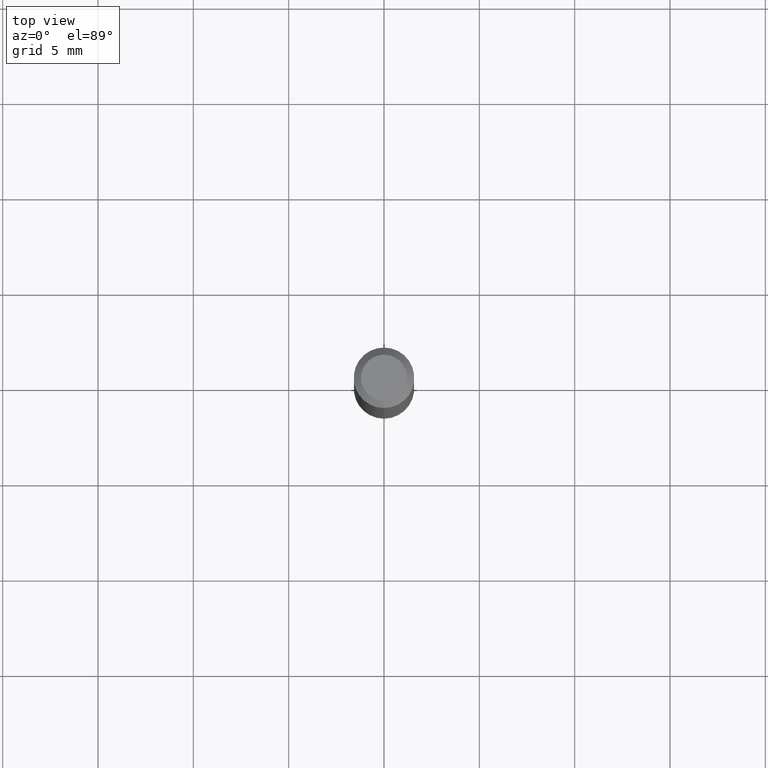
[diagram: clean part render]
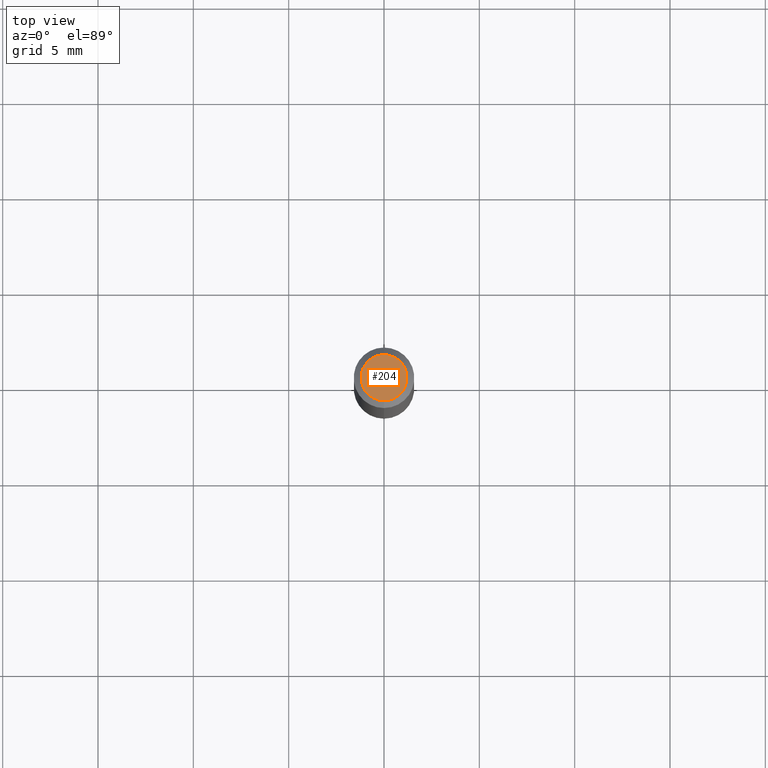
[diagram: same view with one face highlighted and labeled with its STEP entity id]
A machine part, top view. The second image highlights one B-rep face of the part: STEP entity #204.
In plain terms, the highlighted planar face has unit normal (0, -0, -1).
Its self-contained STEP definition (entity closure, byte-faithful):
#6 = DIRECTION ( 'NONE',  ( -6.982962677686266711E-15, -1.000000000000000000, 3.491488316391355955E-15 ) ) ;
#18 = AXIS2_PLACEMENT_3D ( 'NONE', #425, #57, #349 ) ;
#22 = DIRECTION ( 'NONE',  ( -2.445463933789263379E-29, 3.491488316391355561E-15, 1.000000000000000000 ) ) ;
#44 = CARTESIAN_POINT ( 'NONE',  ( -3.773273898774340269E-16, -0.04749999999999999362, -1.623009212500302985E-16 ) ) ;
#48 = VERTEX_POINT ( 'NONE', #44 ) ;
#57 = DIRECTION ( 'NONE',  ( 2.445463933789262819E-29, -3.491488316391355955E-15, -1.000000000000000000 ) ) ;
#110 = CIRCLE ( 'NONE', #162, 0.04749999999999999362 ) ;
#162 = AXIS2_PLACEMENT_3D ( 'NONE', #412, #368, #6 ) ;
#185 = PLANE ( 'NONE',  #18 ) ;
#193 = CIRCLE ( 'NONE', #256, 0.04749999999999999362 ) ;
#204 = ADVANCED_FACE ( 'NONE', ( #261 ), #185, .F. ) ;
#222 = VERTEX_POINT ( 'NONE', #505 ) ;
#256 = AXIS2_PLACEMENT_3D ( 'NONE', #471, #22, #309 ) ;
#261 = FACE_OUTER_BOUND ( 'NONE', #278, .T. ) ;
#278 = EDGE_LOOP ( 'NONE', ( #392, #433 ) ) ;
#309 = DIRECTION ( 'NONE',  ( -6.982962677686266711E-15, -1.000000000000000000, 3.491488316391355955E-15 ) ) ;
#320 = EDGE_CURVE ( 'NONE', #48, #222, #110, .T. ) ;
#349 = DIRECTION ( 'NONE',  ( 6.982962677686265922E-15, 1.000000000000000000, -3.491488316391355955E-15 ) ) ;
#368 = DIRECTION ( 'NONE',  ( -2.445463933789263379E-29, 3.491488316391355561E-15, 1.000000000000000000 ) ) ;
#392 = ORIENTED_EDGE ( 'NONE', *, *, #474, .T. ) ;
#412 = CARTESIAN_POINT ( 'NONE',  ( 8.024707151043492803E-45, -1.145720076800158063E-30, -3.281466162786197113E-16 ) ) ;
#425 = CARTESIAN_POINT ( 'NONE',  ( 3.316907271900976096E-16, 0.04749999999999999362, -3.299190031678992684E-16 ) ) ;
#433 = ORIENTED_EDGE ( 'NONE', *, *, #320, .T. ) ;
#471 = CARTESIAN_POINT ( 'NONE',  ( 8.024707151043492803E-45, -1.145720076800158063E-30, -3.281466162786197113E-16 ) ) ;
#474 = EDGE_CURVE ( 'NONE', #222, #48, #193, .T. ) ;
#505 = CARTESIAN_POINT ( 'NONE',  ( 3.840629472727447874E-16, 0.04749999999999999362, -4.939923113072091241E-16 ) ) ;